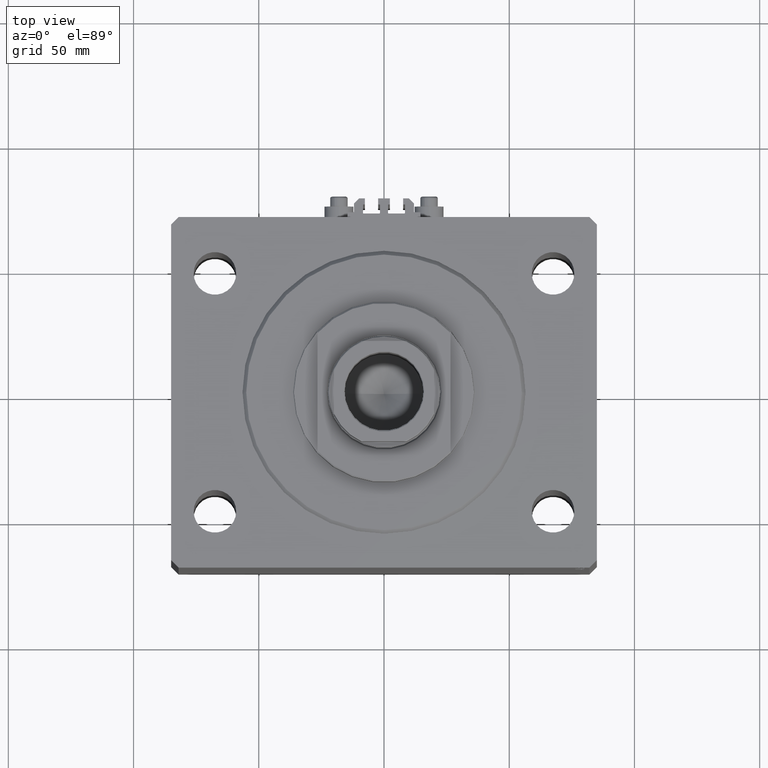
[diagram: clean part render]
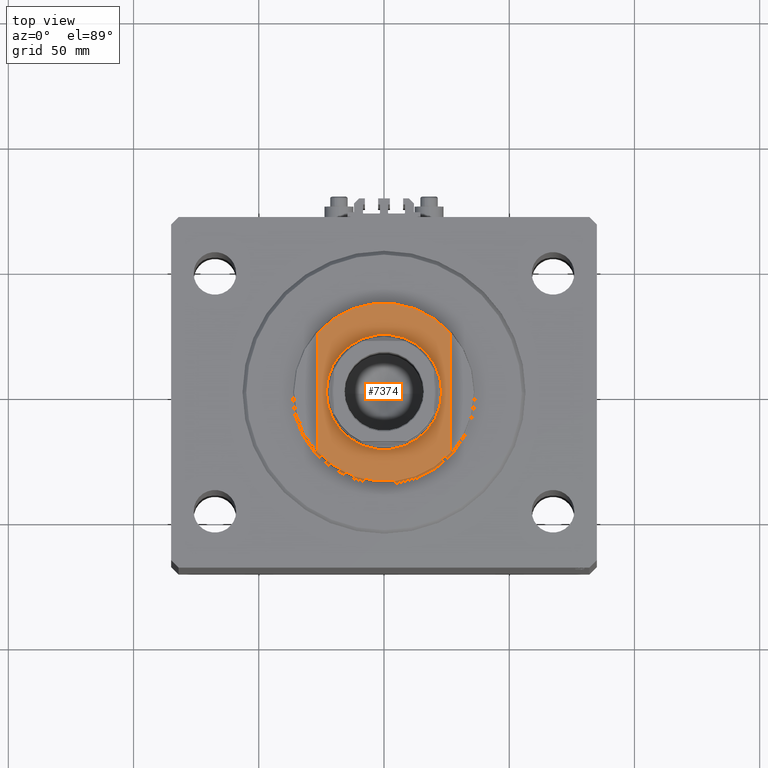
[diagram: same view with one face highlighted and labeled with its STEP entity id]
A machine part, top view. The second image highlights one B-rep face of the part: STEP entity #7374.
In plain terms, the highlighted planar face has unit normal (0, 0, 1).
Its self-contained STEP definition (entity closure, byte-faithful):
#829 = EDGE_CURVE ( 'NONE', #35021, #16874, #20649, .T. ) ;
#1419 = AXIS2_PLACEMENT_3D ( 'NONE', #17113, #2519, #31722 ) ;
#1519 = ORIENTED_EDGE ( 'NONE', *, *, #829, .T. ) ;
#1894 = ORIENTED_EDGE ( 'NONE', *, *, #35008, .T. ) ;
#2426 = VECTOR ( 'NONE', #10120, 1000.000000000000000 ) ;
#2519 = DIRECTION ( 'NONE',  ( -0.000000000000000000, -0.000000000000000000, 1.000000000000000000 ) ) ;
#2864 = CARTESIAN_POINT ( 'NONE',  ( -23.00000000000000355, 0.000000000000000000, -8.000000000000000000 ) ) ;
#2899 = FACE_BOUND ( 'NONE', #28459, .T. ) ;
#4787 = AXIS2_PLACEMENT_3D ( 'NONE', #17498, #25140, #28268 ) ;
#5743 = ORIENTED_EDGE ( 'NONE', *, *, #46141, .F. ) ;
#6380 = DIRECTION ( 'NONE',  ( -1.000000000000000000, 0.000000000000000000, 0.000000000000000000 ) ) ;
#7166 = CARTESIAN_POINT ( 'NONE',  ( 26.50000000000000000, -36.36963018783666257, -8.000000000000000000 ) ) ;
#7374 = ADVANCED_FACE ( 'NONE', ( #2899, #32817 ), #24908, .T. ) ;
#10120 = DIRECTION ( 'NONE',  ( -0.000000000000000000, -1.000000000000000000, -0.000000000000000000 ) ) ;
#12146 = CIRCLE ( 'NONE', #36612, 35.49999999999999289 ) ;
#13997 = CARTESIAN_POINT ( 'NONE',  ( -26.50000000000000000, 23.62202362203541739, -8.000000000000000000 ) ) ;
#14361 = VERTEX_POINT ( 'NONE', #20320 ) ;
#14432 = CARTESIAN_POINT ( 'NONE',  ( 0.000000000000000000, 0.000000000000000000, -8.000000000000000000 ) ) ;
#16874 = VERTEX_POINT ( 'NONE', #27833 ) ;
#16994 = CARTESIAN_POINT ( 'NONE',  ( 0.000000000000000000, 0.000000000000000000, -8.000000000000000000 ) ) ;
#16996 = DIRECTION ( 'NONE',  ( 0.000000000000000000, -1.000000000000000000, -0.000000000000000000 ) ) ;
#17113 = CARTESIAN_POINT ( 'NONE',  ( 0.000000000000000000, 0.000000000000000000, -8.000000000000000000 ) ) ;
#17498 = CARTESIAN_POINT ( 'NONE',  ( 0.000000000000000000, 0.000000000000000000, -8.000000000000000000 ) ) ;
#20320 = CARTESIAN_POINT ( 'NONE',  ( -26.50000000000000000, -23.62202362203541739, -8.000000000000000000 ) ) ;
#20649 = CIRCLE ( 'NONE', #35951, 35.49999999999999289 ) ;
#21324 = VECTOR ( 'NONE', #16996, 1000.000000000000000 ) ;
#21531 = ORIENTED_EDGE ( 'NONE', *, *, #32638, .T. ) ;
#22317 = DIRECTION ( 'NONE',  ( -1.000000000000000000, 0.000000000000000000, 0.000000000000000000 ) ) ;
#24908 = PLANE ( 'NONE',  #4787 ) ;
#25112 = VERTEX_POINT ( 'NONE', #38650 ) ;
#25140 = DIRECTION ( 'NONE',  ( 0.000000000000000000, 0.000000000000000000, -1.000000000000000000 ) ) ;
#27313 = CIRCLE ( 'NONE', #39590, 23.00000000000000355 ) ;
#27833 = CARTESIAN_POINT ( 'NONE',  ( 26.50000000000000000, 23.62202362203541739, -8.000000000000000000 ) ) ;
#28268 = DIRECTION ( 'NONE',  ( -1.000000000000000000, 0.000000000000000000, -0.000000000000000000 ) ) ;
#28459 = EDGE_LOOP ( 'NONE', ( #1894, #21531 ) ) ;
#29244 = CARTESIAN_POINT ( 'NONE',  ( 26.50000000000000000, -23.62202362203541739, -8.000000000000000000 ) ) ;
#31599 = DIRECTION ( 'NONE',  ( -1.000000000000000000, 0.000000000000000000, 0.000000000000000000 ) ) ;
#31722 = DIRECTION ( 'NONE',  ( -1.000000000000000000, 0.000000000000000000, 0.000000000000000000 ) ) ;
#32638 = EDGE_CURVE ( 'NONE', #25112, #41426, #27313, .T. ) ;
#32817 = FACE_OUTER_BOUND ( 'NONE', #33454, .T. ) ;
#33454 = EDGE_LOOP ( 'NONE', ( #1519, #44883, #46667, #5743 ) ) ;
#35008 = EDGE_CURVE ( 'NONE', #41426, #25112, #36617, .T. ) ;
#35021 = VERTEX_POINT ( 'NONE', #13997 ) ;
#35212 = DIRECTION ( 'NONE',  ( 0.000000000000000000, 0.000000000000000000, -1.000000000000000000 ) ) ;
#35751 = LINE ( 'NONE', #47399, #2426 ) ;
#35926 = LINE ( 'NONE', #7166, #21324 ) ;
#35951 = AXIS2_PLACEMENT_3D ( 'NONE', #14432, #43650, #22317 ) ;
#35991 = EDGE_CURVE ( 'NONE', #16874, #36542, #35926, .T. ) ;
#36542 = VERTEX_POINT ( 'NONE', #29244 ) ;
#36612 = AXIS2_PLACEMENT_3D ( 'NONE', #16994, #35212, #31599 ) ;
#36617 = CIRCLE ( 'NONE', #1419, 23.00000000000000355 ) ;
#38471 = CARTESIAN_POINT ( 'NONE',  ( 0.000000000000000000, 0.000000000000000000, -8.000000000000000000 ) ) ;
#38650 = CARTESIAN_POINT ( 'NONE',  ( 23.00000000000000355, 2.816687638038912746E-15, -8.000000000000000000 ) ) ;
#38960 = DIRECTION ( 'NONE',  ( -0.000000000000000000, -0.000000000000000000, 1.000000000000000000 ) ) ;
#39590 = AXIS2_PLACEMENT_3D ( 'NONE', #38471, #38960, #6380 ) ;
#39600 = EDGE_CURVE ( 'NONE', #36542, #14361, #12146, .T. ) ;
#41426 = VERTEX_POINT ( 'NONE', #2864 ) ;
#43650 = DIRECTION ( 'NONE',  ( 0.000000000000000000, 0.000000000000000000, -1.000000000000000000 ) ) ;
#44883 = ORIENTED_EDGE ( 'NONE', *, *, #35991, .T. ) ;
#46141 = EDGE_CURVE ( 'NONE', #35021, #14361, #35751, .T. ) ;
#46667 = ORIENTED_EDGE ( 'NONE', *, *, #39600, .T. ) ;
#47399 = CARTESIAN_POINT ( 'NONE',  ( -26.50000000000000000, -36.36963018783666257, -8.000000000000000000 ) ) ;